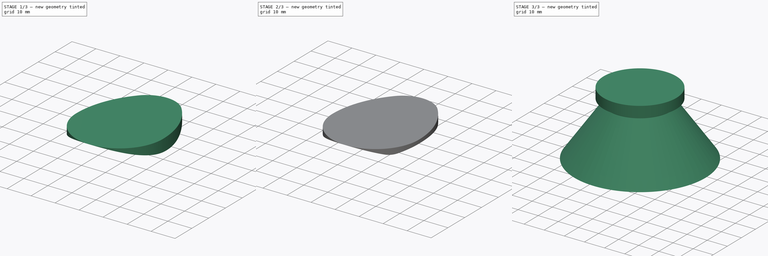
[diagram: build sequence overview — one tinted view per stage of 3, left to right]
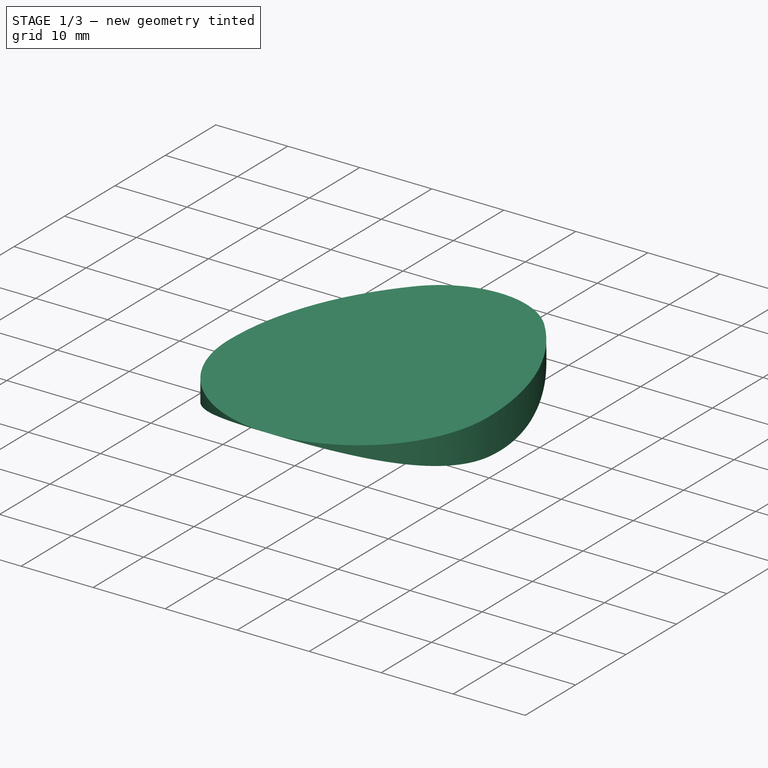
[diagram: stage 1 of 3 — iso view after this stage's code; geometry added in this stage tinted green]
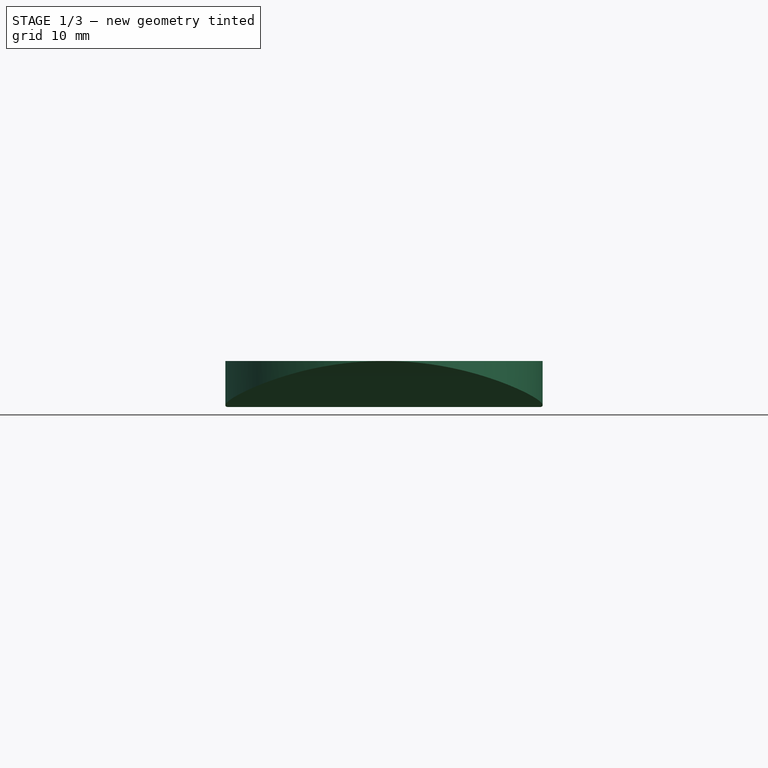
[diagram: stage 1 of 3 — front view after this stage's code; geometry added in this stage tinted green]
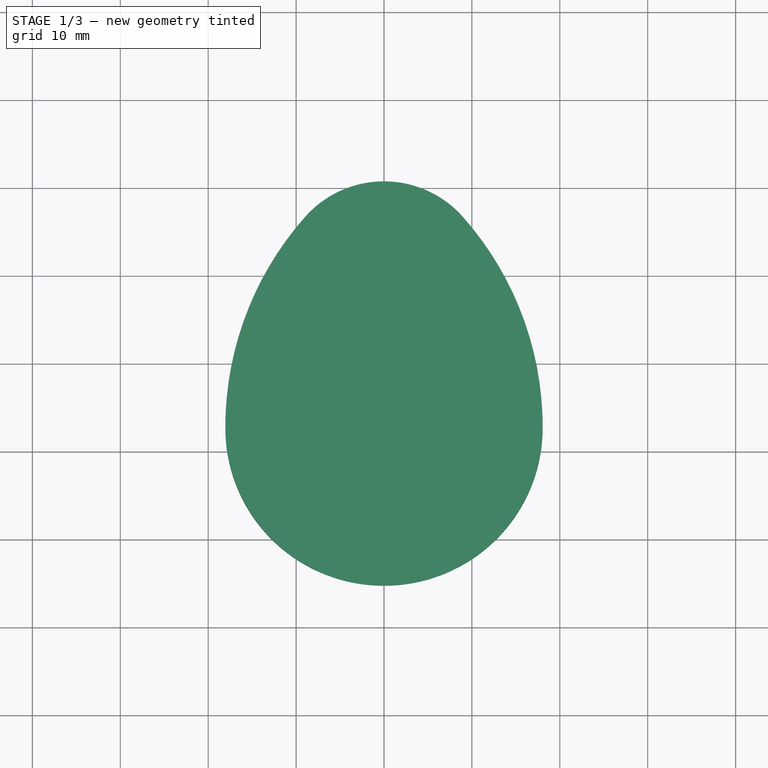
[diagram: stage 1 of 3 — top view after this stage's code; geometry added in this stage tinted green]
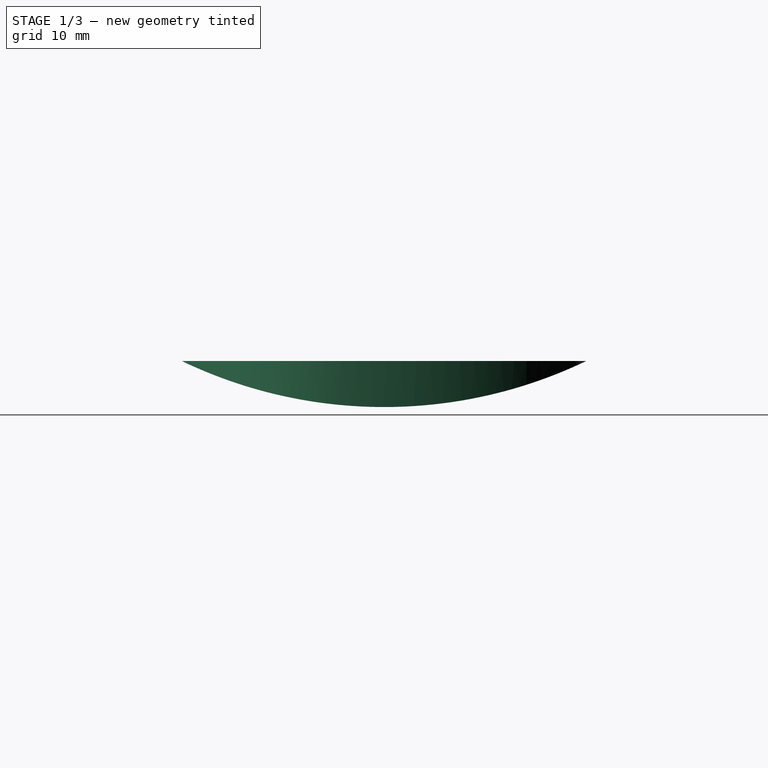
[diagram: stage 1 of 3 — right view after this stage's code; geometry added in this stage tinted green]
FCSTD DOCUMENT  (FreeCAD 1.1R39153 (Git))
Label: Шляпа
License: All rights reserved
LicenseURL: https://en.wikipedia.org/wiki/All_rights_reserved
objects: Sketcher::SketchObject×5, PartDesign::Pocket×3, PartDesign::Pad×1, PartDesign::Fillet×1, PartDesign::Revolution×1, PartDesign::Body×1
note: 29 computed .brp shape members not serialized (recipe doc carries the construction recipe); baked Part::Feature solids carry a one-line shape summary decoded from their .brp

FEATURE [Sketcher::SketchObject] Sketch
  ArcFitTolerance = 1e-06
  AttachmentSupport = -> [XY_Plane]
  FullyConstrained = false
  MakeInternals = false
  MapMode = 5
  sketch-geometry (5):
    g0: ArcOfCircle CenterX=18.0517 CenterY=-17.276 CenterZ=0 NormalX=0 NormalY=0 NormalZ=1 AngleXU=0 Radius=36.1033 StartAngle=2.41684 EndAngle=3.14159
    g1: ArcOfCircle CenterX=-18.0517 CenterY=-17.276 CenterZ=0 NormalX=0 NormalY=0 NormalZ=1 AngleXU=0 Radius=36.1033 StartAngle=0 EndAngle=0.724757
    g2: ArcOfCircle CenterX=-5e-16 CenterY=-17.276 CenterZ=0 NormalX=0 NormalY=0 NormalZ=1 AngleXU=0 Radius=18.0517 StartAngle=3.14159 EndAngle=4.71239
    g3: ArcOfCircle CenterX=-5e-16 CenterY=-17.276 CenterZ=0 NormalX=0 NormalY=0 NormalZ=1 AngleXU=0 Radius=18.0517 StartAngle=4.71239 EndAngle=6.28319
    g4: ArcOfCircle CenterX=0 CenterY=-1.29091 CenterZ=0 NormalX=0 NormalY=0 NormalZ=1 AngleXU=0 Radius=11.9914 StartAngle=0.724757 EndAngle=2.41684
  constraints (11):
    c: Coincident(g3,g2)
    c: Coincident(g3,g2)
    c: PointOnObject(g2,g-2)
    c: Tangent(g2,g0) = -1.5708
    c: Tangent(g3,g1) = -1.5708
    c: Symmetric(g0,g1,g-2)
    c: Horizontal(g0,g2)
    c: PointOnObject(g0,g1)
    c: Tangent(g0,g4) = -1.5708
    c: Tangent(g1,g4) = -1.5708
    c: PointOnObject(g4,g-2)
FEATURE [PartDesign::Pad] Pad
  Direction = (0,0,1)
  Length = 10
  Length2 = 10
  Profile = -> Sketch
  ReferenceAxis = -> Sketch [N_Axis]
  Refine = true
  Suppressed = false
  Type = 0
FEATURE [Sketcher::SketchObject] Sketch001
  ArcFitTolerance = 1e-06
  AttachmentOffset = pos=(0,0,25) rot=(0,0,1;0rad)
  AttachmentSupport = -> [YZ_Plane]
  ExternalGeometry = -> [Pad]
  FullyConstrained = false
  MakeInternals = false
  MapMode = 5
  Placement = pos=(25,0,0) rot=(0.57735,0.57735,0.57735;2.0944rad)
  sketch-geometry (4):
    g0: ArcOfCircle CenterX=-12.3136 CenterY=57.8837 CenterZ=0 NormalX=0 NormalY=0 NormalZ=1 AngleXU=0 Radius=53.1272 StartAngle=4.26436 EndAngle=5.16042
    g1: LineSegment StartX=-35.3277 StartY=10 StartZ=0 EndX=-35.3277 EndY=0 EndZ=0
    g2: LineSegment StartX=-35.3277 StartY=0 StartZ=0 EndX=10.7005 EndY=0 EndZ=0
    g3: LineSegment StartX=10.7005 StartY=0 StartZ=0 EndX=10.7005 EndY=10 EndZ=0
  constraints (8):
    c: Coincident(g0,g-6)
    c: Coincident(g0,g-4)
    c: Coincident(g0,g1)
    c: Coincident(g1,g2)
    c: Coincident(g2,g-9)
    c: Horizontal(g2)
    c: Coincident(g2,g3)
    c: Coincident(g3,g0)
FEATURE [PartDesign::Pocket] Pocket
  BaseFeature = -> Pad
  Direction = (-1,0,0)
  Length = 5
  Length2 = 5
  Profile = -> Sketch001
  ReferenceAxis = -> Sketch001 [N_Axis]
  Refine = true
  Suppressed = false
  Type = 1
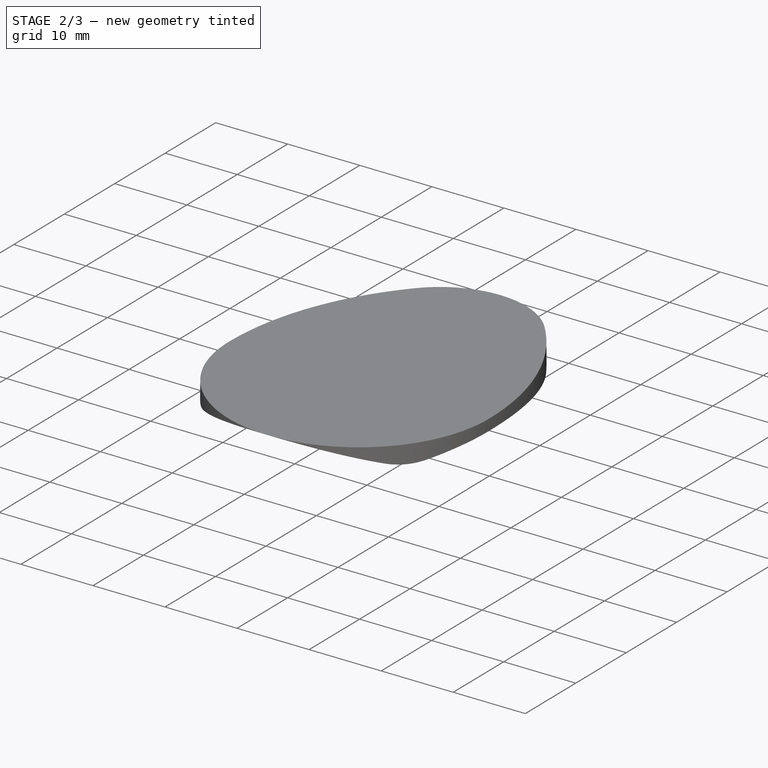
[diagram: stage 2 of 3 — iso view after this stage's code; geometry added in this stage tinted green]
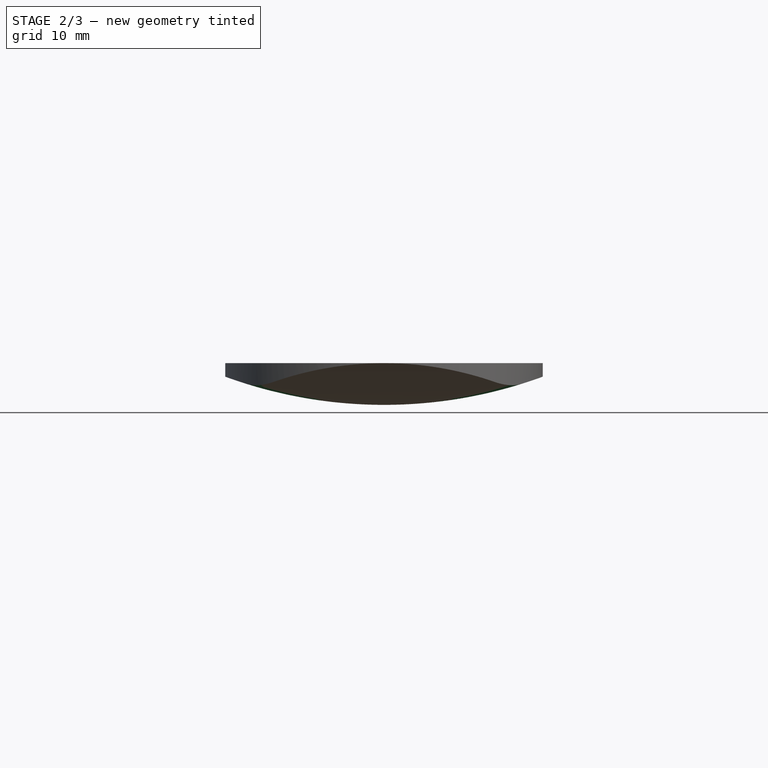
[diagram: stage 2 of 3 — front view after this stage's code; geometry added in this stage tinted green]
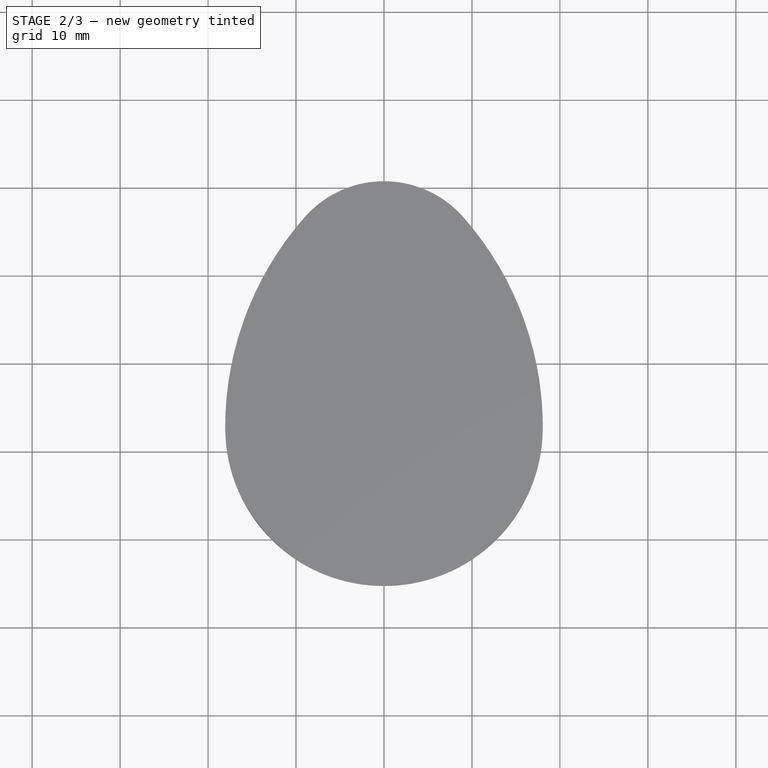
[diagram: stage 2 of 3 — top view after this stage's code; geometry added in this stage tinted green]
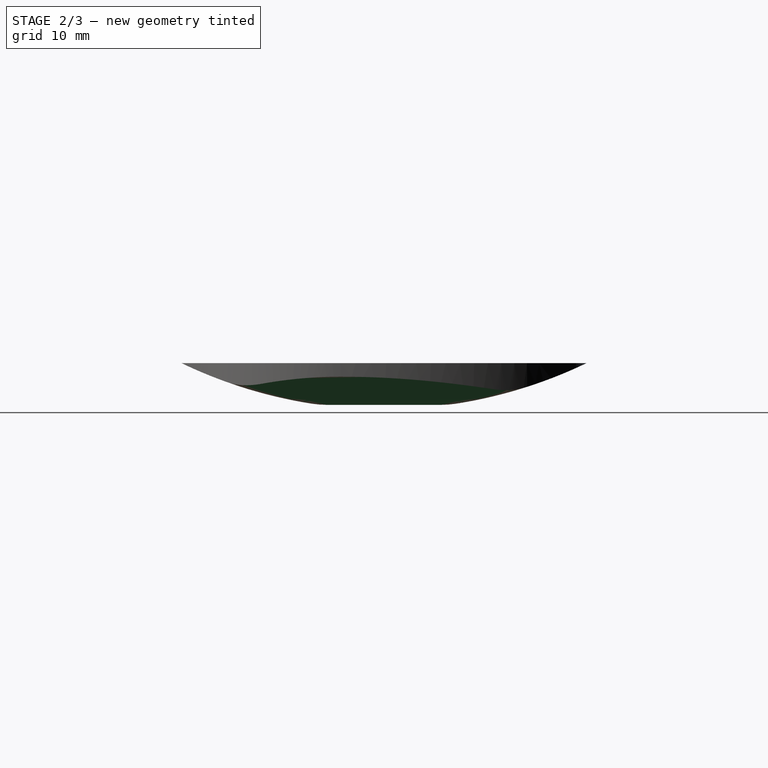
[diagram: stage 2 of 3 — right view after this stage's code; geometry added in this stage tinted green]
FEATURE [Sketcher::SketchObject] Sketch003
  ArcFitTolerance = 1e-06
  AttachmentSupport = -> [XZ_Plane]
  ExternalGeometry = -> [Pocket]
  FullyConstrained = false
  MakeInternals = false
  MapMode = 5
  Placement = pos=(0,0,0) rot=(1,0,0;1.5708rad)
  sketch-geometry (4):
    g0: ArcOfCircle CenterX=0 CenterY=57.7066 CenterZ=0 NormalX=0 NormalY=0 NormalZ=1 AngleXU=0 Radius=52.4492 StartAngle=4.36103 EndAngle=5.06375
    g1: LineSegment StartX=-18.0517 StartY=8.4618 StartZ=0 EndX=-18.0517 EndY=0.480411 EndZ=0
    g2: LineSegment StartX=-18.0517 StartY=0.480411 StartZ=0 EndX=18.0517 EndY=0.480411 EndZ=0
    g3: LineSegment StartX=18.0517 StartY=0.480411 StartZ=0 EndX=18.0517 EndY=8.4618 EndZ=0
  constraints (10):
    c: PointOnObject(g0,g-2)
    c: PointOnObject(g0,g-3)
    c: PointOnObject(g0,g-4)
    c: Coincident(g1,g0)
    c: Coincident(g3,g0)
    c: Coincident(g1,g2)
    c: Coincident(g2,g3)
    c: PointOnObject(g-4,g3)
    c: PointOnObject(g-3,g1)
    c: Horizontal(g2)
FEATURE [PartDesign::Pocket] Pocket001
  BaseFeature = -> Pocket
  Direction = (0,1,0)
  Length = 50
  Length2 = 65
  Profile = -> Sketch003
  ReferenceAxis = -> Sketch003 [N_Axis]
  Refine = true
  Reversed = true
  Suppressed = false
  Type = 4
FEATURE [PartDesign::Fillet] Fillet
  Base = -> Pocket001 [Edge18,Edge9]
  BaseFeature = -> Pocket001
  Radius = 11
  Refine = true
  SupportTransform = false
  Suppressed = false
  UseAllEdges = false
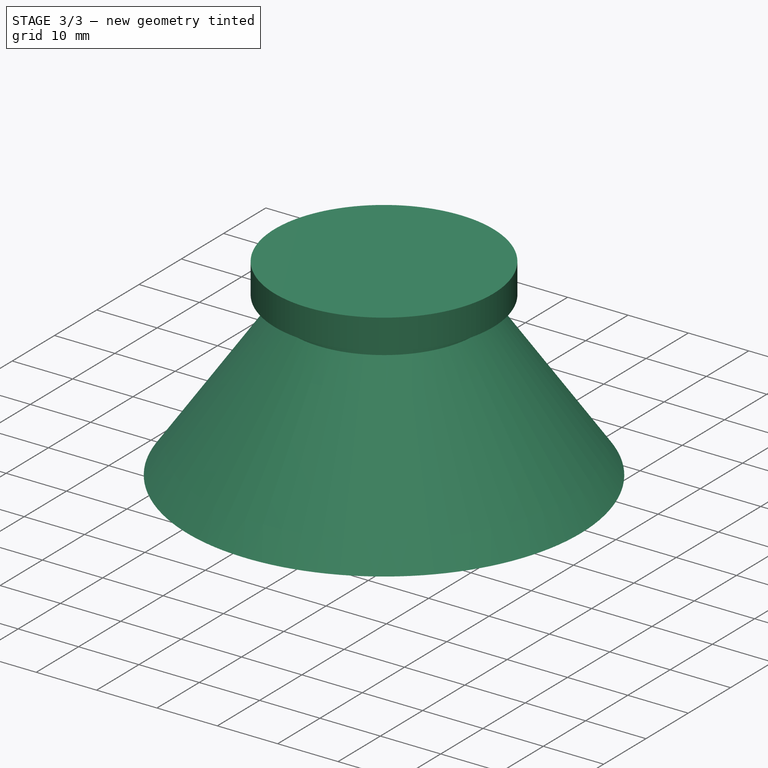
[diagram: stage 3 of 3 — iso view after this stage's code; geometry added in this stage tinted green]
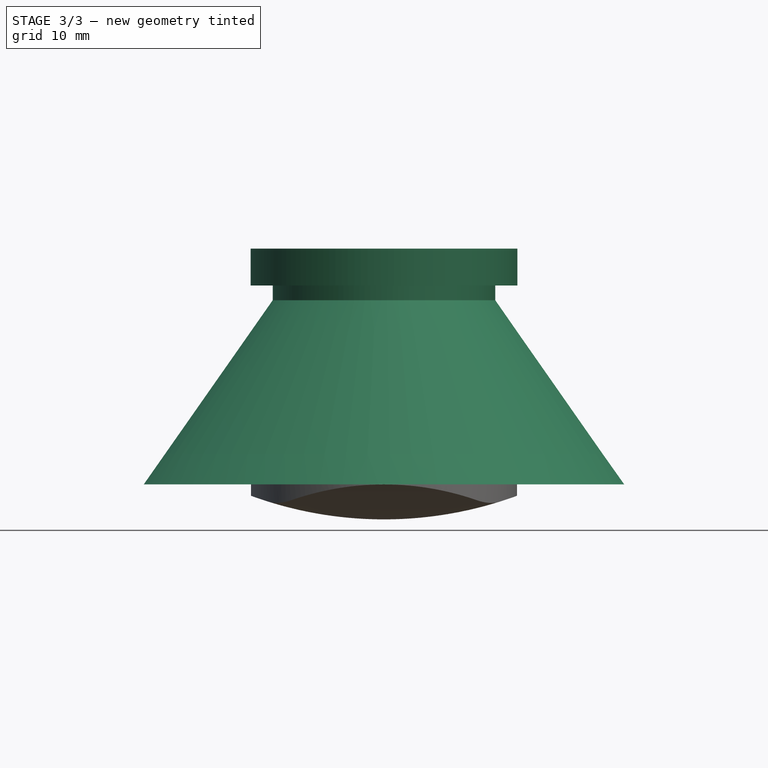
[diagram: stage 3 of 3 — front view after this stage's code; geometry added in this stage tinted green]
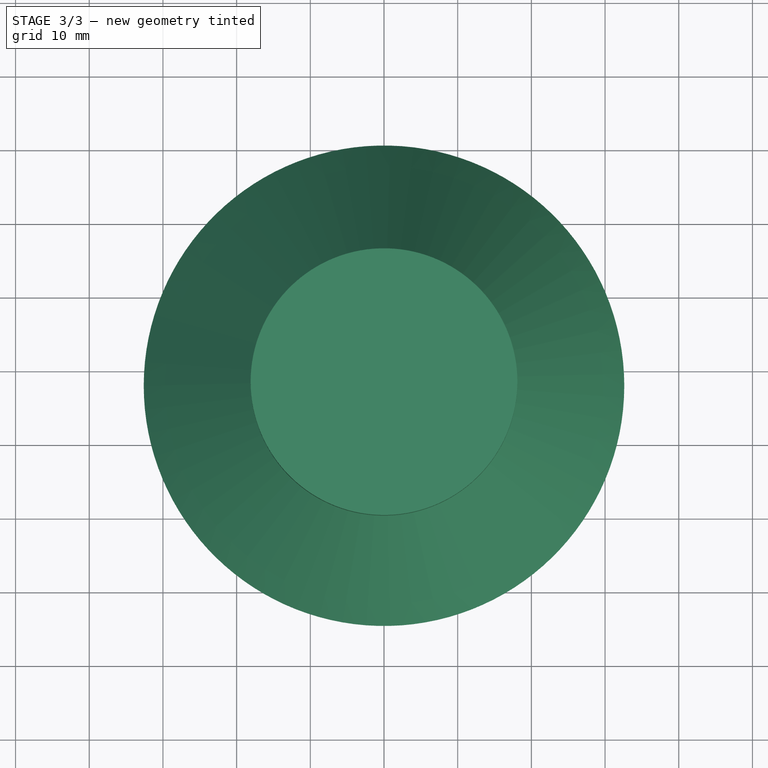
[diagram: stage 3 of 3 — top view after this stage's code; geometry added in this stage tinted green]
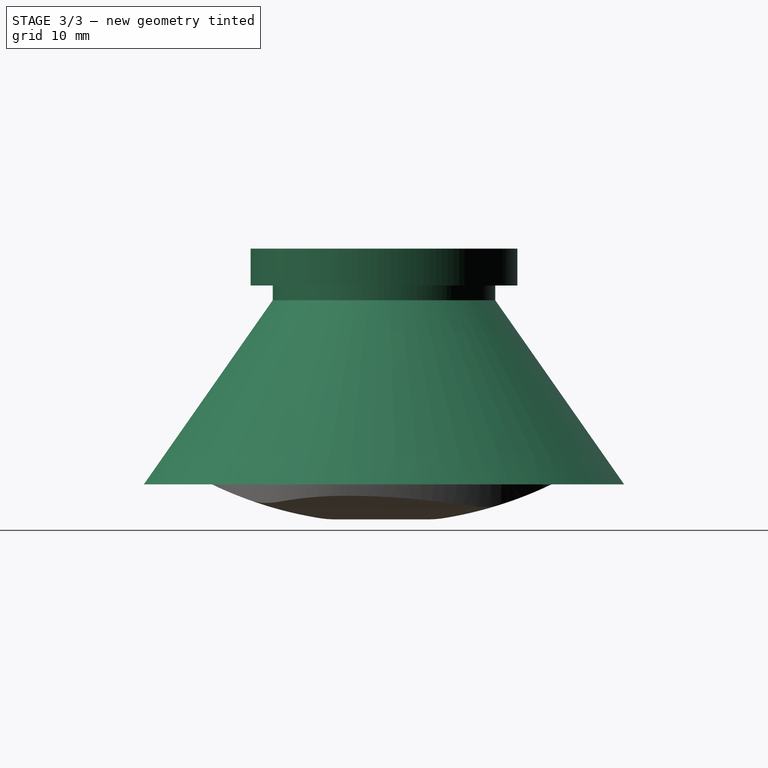
[diagram: stage 3 of 3 — right view after this stage's code; geometry added in this stage tinted green]
FEATURE [Sketcher::SketchObject] Sketch004
  ArcFitTolerance = 1e-06
  AttachmentSupport = -> [XY_Plane]
  ExternalGeometry = -> [Fillet]
  FullyConstrained = false
  MakeInternals = false
  MapMode = 5
  sketch-geometry (1):
    g0: Circle CenterX=0 CenterY=0 CenterZ=0 NormalX=0 NormalY=0 NormalZ=1 AngleXU=0 Radius=2.35022
  constraints (1):
    c: Coincident(g0,g-1)
FEATURE [PartDesign::Pocket] Pocket002
  BaseFeature = -> Fillet
  Direction = (0,0,-1)
  Length = 5
  Length2 = 5
  Profile = -> Sketch004
  ReferenceAxis = -> Sketch004 [N_Axis]
  Refine = true
  Reversed = true
  Suppressed = false
  Type = 1
FEATURE [Sketcher::SketchObject] Sketch005
  ArcFitTolerance = 1e-06
  AttachmentOffset = pos=(0,0,12) rot=(0,0,1;0rad)
  AttachmentSupport = -> [XZ_Plane]
  ExternalGeometry = -> [Pocket002]
  FullyConstrained = false
  MakeInternals = false
  MapMode = 5
  Placement = pos=(0,-12,2.7e-15) rot=(1,0,0;1.5708rad)
  sketch-geometry (10):
    g0: LineSegment StartX=-29.6058 StartY=10 StartZ=0 EndX=-32.6058 EndY=10 EndZ=0
    g1: LineSegment StartX=-32.6058 StartY=10 StartZ=0 EndX=-15.1007 EndY=35 EndZ=0
    g2: LineSegment StartX=-18.1007 StartY=42 StartZ=0 EndX=0 EndY=42 EndZ=0
    g3: LineSegment [constr] StartX=-15.1007 StartY=60 StartZ=0 EndX=-15.1007 EndY=35 EndZ=0
    g4: LineSegment StartX=-15.1007 StartY=35 StartZ=0 EndX=-15.1007 EndY=37 EndZ=0
    g5: LineSegment StartX=-15.1007 StartY=37 StartZ=0 EndX=-18.1007 EndY=37 EndZ=0
    g6: LineSegment StartX=-18.1007 StartY=37 StartZ=0 EndX=-18.1007 EndY=42 EndZ=0
    g7: LineSegment StartX=-29.6058 StartY=10 StartZ=0 EndX=0 EndY=10 EndZ=0
    g8: LineSegment StartX=0 StartY=10 StartZ=0 EndX=0 EndY=42 EndZ=0
    g9: LineSegment [constr] StartX=-15.1007 StartY=35 StartZ=0 EndX=-15.1007 EndY=-11.536 EndZ=0
  constraints (26):
    c: Horizontal(g0)
    c: Coincident(g0,g1)
    c: PointOnObject(g2,g-2)
    c: Horizontal(g2)
    c: Distance(g0,g0) = 3
    c: DistanceY(g0,g2) = 32
    c: Coincident(g1,g4)
    c: Coincident(g4,g5)
    c: Horizontal(g5)
    c: Coincident(g5,g6)
    c: Vertical(g6)
    c: Coincident(g2,g6)
    c: Coincident(g3,g1)
    c: Distance(g5,g5) = 3
    c: Vertical(g4)
    c: Vertical(g3)
    c: DistanceY(g6,g6) = 5
    c: DistanceY(g1,g1) = 25
    c: Coincident(g7,g0)
    c: Horizontal(g7)
    c: Coincident(g8,g7)
    c: Coincident(g8,g2)
    c: Coincident(g9,g1)
    c: Vertical(g9)
    c: Angle(g1,g9) = 0.610865
    c: Coincident(g7,g-3)
FEATURE [PartDesign::Revolution] Revolution
  Angle = 360
  Angle2 = 60
  Axis = (0,2e-16,1)
  Base = (0,-12,2.7e-15)
  BaseFeature = -> Pocket002
  Profile = -> Sketch005
  ReferenceAxis = -> Sketch005 [V_Axis]
  Refine = true
  Suppressed = false
  Type = 0
FEATURE [PartDesign::Body] Body  label="Тело"
  AllowCompound = false
  Group = -> [Sketch,Pad,Sketch001,Pocket,Sketch003,Pocket001,Fillet,Sketch004,Pocket002,Sketch005,Revolution]
  Origin = -> Origin
  Tip = -> Revolution
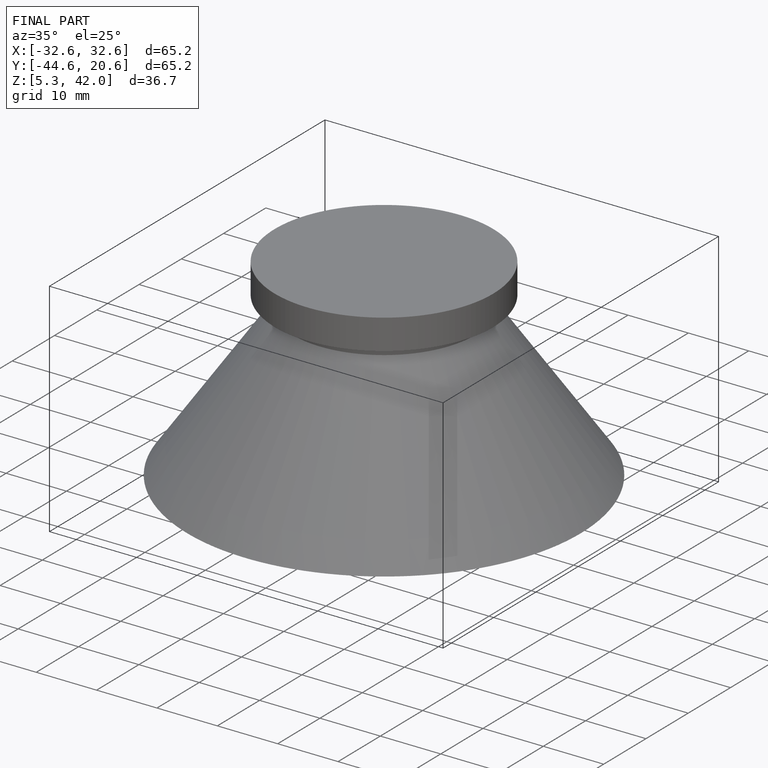
[diagram: finished part — iso view with bounding-box wireframe]
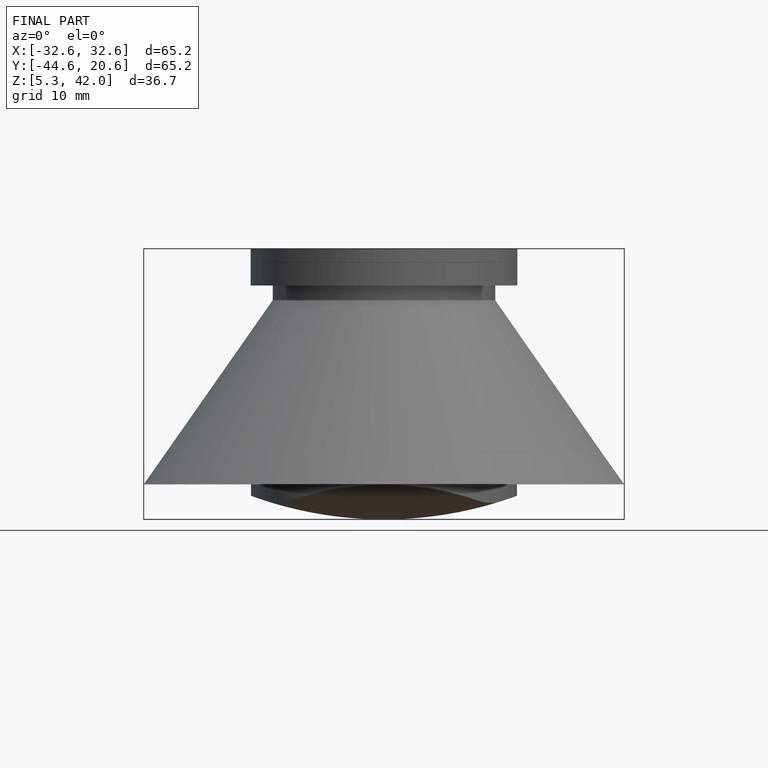
[diagram: finished part — front view with bounding-box wireframe]
